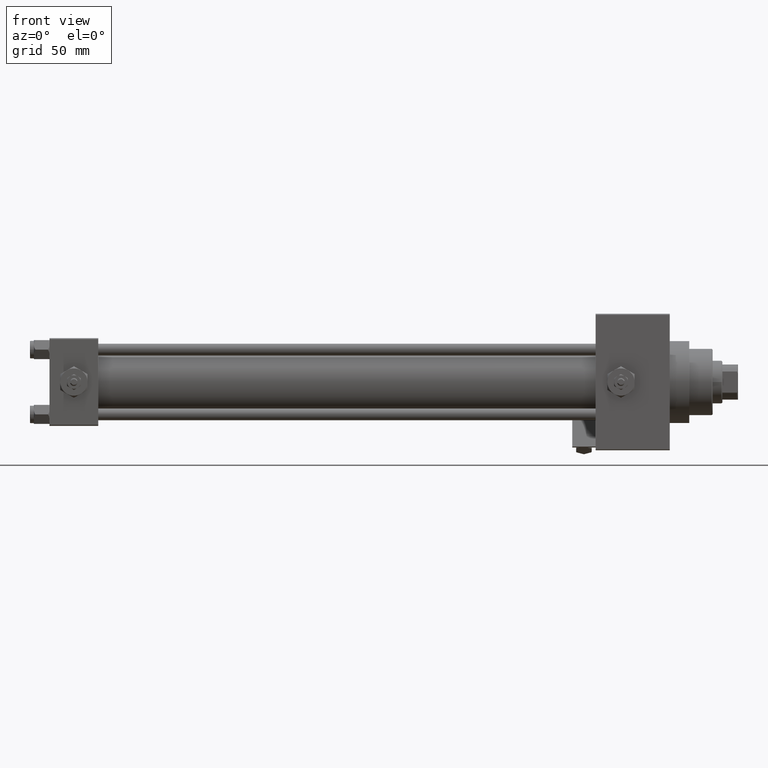
[diagram: clean part render]
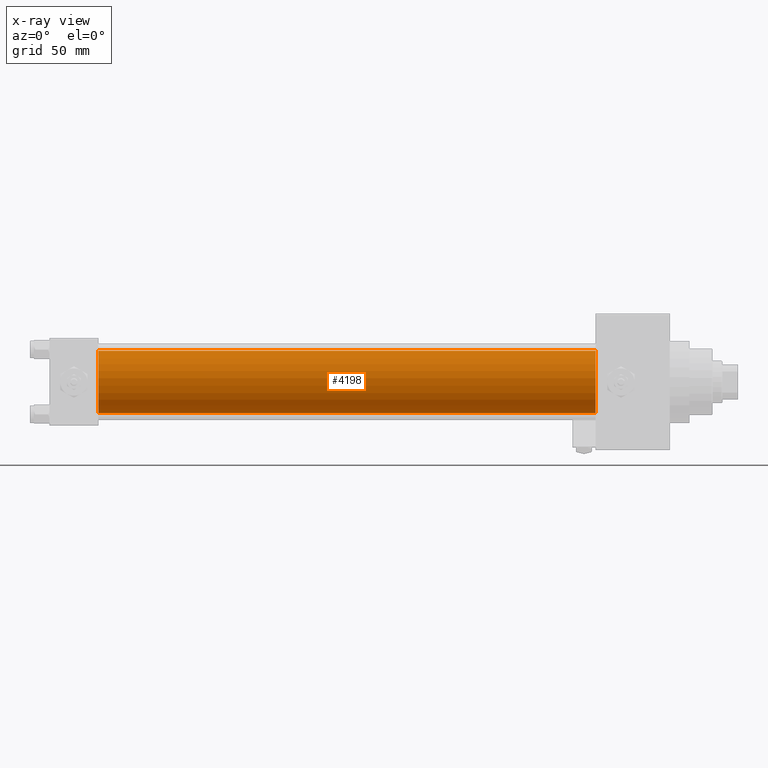
[diagram: x-ray — body ghosted, one internal face saturated and labeled with its STEP entity id]
A machine part, front view, then the same camera in x-ray: the body is ghosted and one INTERNAL B-rep face — a face not visible from any outside direction — is saturated and labeled: STEP entity #4198.
In plain terms, the highlighted cylindrical surface (edge-blend (fillet) strip) has radius 16 mm, axis along (-1, -0, -0).
Its self-contained STEP definition (entity closure, byte-faithful):
#735 = CARTESIAN_POINT ( 'NONE',  ( 25.00000000000000000, -2.602085213965210642E-15, 0.000000000000000000 ) ) ;
#1596 = CARTESIAN_POINT ( 'NONE',  ( 25.00000000000000000, -6.426503353294456087E-16, -16.00000000000000000 ) ) ;
#3061 = CARTESIAN_POINT ( 'NONE',  ( 280.0000000000000000, -6.426503353294456087E-16, -16.00000000000000000 ) ) ;
#3763 = EDGE_LOOP ( 'NONE', ( #34070, #27611, #45805, #13619 ) ) ;
#4198 = ADVANCED_FACE ( 'NONE', ( #46846 ), #31385, .F. ) ;
#4497 = DIRECTION ( 'NONE',  ( -1.000000000000000000, -0.000000000000000000, -0.000000000000000000 ) ) ;
#11381 = CIRCLE ( 'NONE', #38063, 16.00000000000000000 ) ;
#11422 = CARTESIAN_POINT ( 'NONE',  ( 280.0000000000000000, -2.602085213965210642E-15, 0.000000000000000000 ) ) ;
#12045 = EDGE_CURVE ( 'NONE', #36762, #20956, #23759, .T. ) ;
#13619 = ORIENTED_EDGE ( 'NONE', *, *, #49139, .F. ) ;
#15886 = CARTESIAN_POINT ( 'NONE',  ( 25.00000000000000000, -2.602085213965210642E-15, 16.00000000000000000 ) ) ;
#18557 = DIRECTION ( 'NONE',  ( 1.000000000000000000, 0.000000000000000000, 0.000000000000000000 ) ) ;
#20584 = AXIS2_PLACEMENT_3D ( 'NONE', #48107, #44547, #48362 ) ;
#20956 = VERTEX_POINT ( 'NONE', #1596 ) ;
#23313 = DIRECTION ( 'NONE',  ( 0.000000000000000000, 0.000000000000000000, 1.000000000000000000 ) ) ;
#23759 = LINE ( 'NONE', #42744, #47056 ) ;
#26755 = VERTEX_POINT ( 'NONE', #15886 ) ;
#27611 = ORIENTED_EDGE ( 'NONE', *, *, #12045, .T. ) ;
#30370 = CARTESIAN_POINT ( 'NONE',  ( 280.0000000000000000, -2.602085213965210642E-15, 16.00000000000000000 ) ) ;
#31172 = VERTEX_POINT ( 'NONE', #48586 ) ;
#31385 = CYLINDRICAL_SURFACE ( 'NONE', #35570, 16.00000000000000000 ) ;
#34070 = ORIENTED_EDGE ( 'NONE', *, *, #48926, .T. ) ;
#35570 = AXIS2_PLACEMENT_3D ( 'NONE', #11422, #49917, #23313 ) ;
#36762 = VERTEX_POINT ( 'NONE', #3061 ) ;
#38063 = AXIS2_PLACEMENT_3D ( 'NONE', #735, #18557, #47340 ) ;
#40830 = EDGE_CURVE ( 'NONE', #26755, #20956, #11381, .T. ) ;
#42409 = CIRCLE ( 'NONE', #20584, 16.00000000000000000 ) ;
#42744 = CARTESIAN_POINT ( 'NONE',  ( 280.0000000000000000, -6.426503353294456087E-16, -16.00000000000000000 ) ) ;
#44547 = DIRECTION ( 'NONE',  ( 1.000000000000000000, 0.000000000000000000, 0.000000000000000000 ) ) ;
#45556 = LINE ( 'NONE', #30370, #49727 ) ;
#45805 = ORIENTED_EDGE ( 'NONE', *, *, #40830, .F. ) ;
#45806 = DIRECTION ( 'NONE',  ( -1.000000000000000000, -0.000000000000000000, -0.000000000000000000 ) ) ;
#46846 = FACE_OUTER_BOUND ( 'NONE', #3763, .T. ) ;
#47056 = VECTOR ( 'NONE', #4497, 1000.000000000000000 ) ;
#47340 = DIRECTION ( 'NONE',  ( 0.000000000000000000, 0.000000000000000000, -1.000000000000000000 ) ) ;
#48107 = CARTESIAN_POINT ( 'NONE',  ( 280.0000000000000000, -2.602085213965210642E-15, 0.000000000000000000 ) ) ;
#48362 = DIRECTION ( 'NONE',  ( 0.000000000000000000, 0.000000000000000000, -1.000000000000000000 ) ) ;
#48586 = CARTESIAN_POINT ( 'NONE',  ( 280.0000000000000000, -2.602085213965210642E-15, 16.00000000000000000 ) ) ;
#48926 = EDGE_CURVE ( 'NONE', #31172, #36762, #42409, .T. ) ;
#49139 = EDGE_CURVE ( 'NONE', #31172, #26755, #45556, .T. ) ;
#49727 = VECTOR ( 'NONE', #45806, 1000.000000000000000 ) ;
#49917 = DIRECTION ( 'NONE',  ( -1.000000000000000000, -0.000000000000000000, -0.000000000000000000 ) ) ;